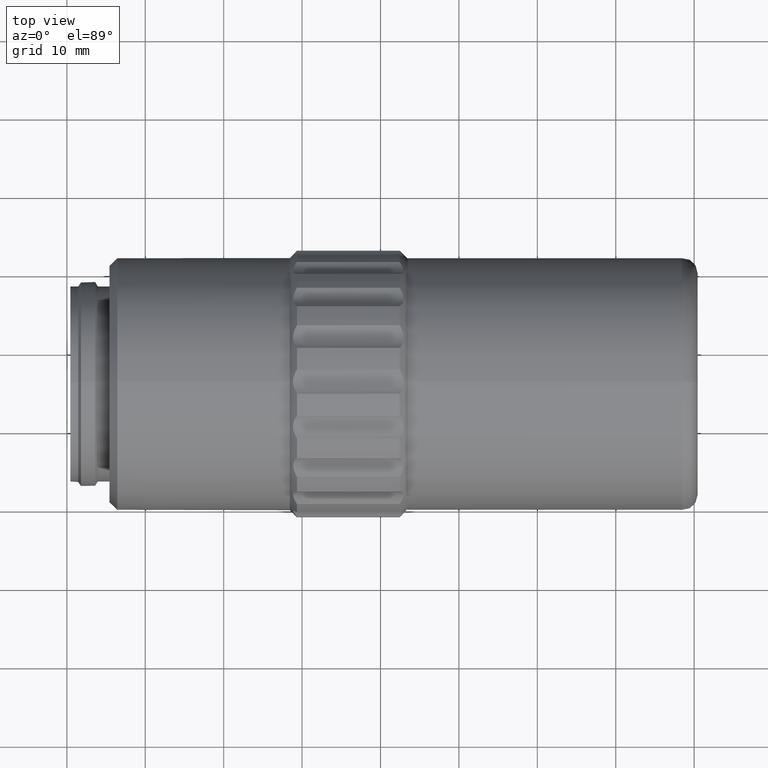
[diagram: clean part render]
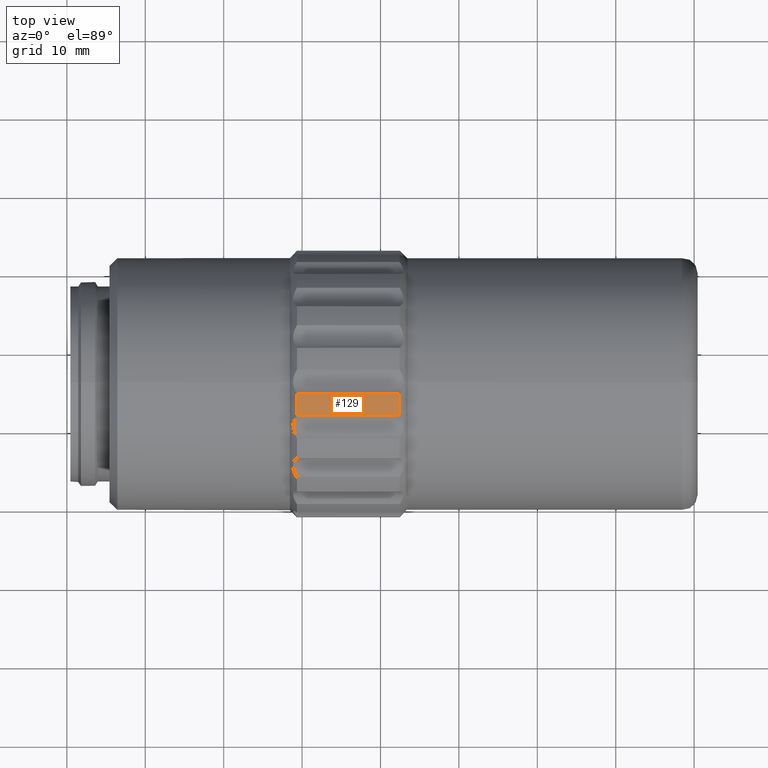
[diagram: same view with one face highlighted and labeled with its STEP entity id]
A machine part, top view. The second image highlights one B-rep face of the part: STEP entity #129.
In plain terms, the highlighted cylindrical surface (partial cylindrical patch) has radius 17 mm, axis along (-1, 0, 0).
Its self-contained STEP definition (entity closure, byte-faithful):
#15 = ORIENTED_EDGE ( 'NONE', *, *, #1277, .F. ) ;
#23 = CARTESIAN_POINT ( 'NONE',  ( 19.34685803487881728, 41.68421451916362486, 16.43753695927285108 ) ) ;
#129 = ADVANCED_FACE ( 'NONE', ( #1557 ), #583, .T. ) ;
#226 = DIRECTION ( 'NONE',  ( 1.000000000000000000, -0.000000000000000000, -0.000000000000000000 ) ) ;
#324 = ORIENTED_EDGE ( 'NONE', *, *, #1973, .T. ) ;
#340 = VERTEX_POINT ( 'NONE', #1516 ) ;
#367 = DIRECTION ( 'NONE',  ( 1.000000000000000000, -0.000000000000000000, -0.000000000000000000 ) ) ;
#395 = LINE ( 'NONE', #1379, #1530 ) ;
#411 = CARTESIAN_POINT ( 'NONE',  ( 32.44685803487876541, 41.68421451916363196, 16.43753695927285818 ) ) ;
#514 = VERTEX_POINT ( 'NONE', #23 ) ;
#526 = CIRCLE ( 'NONE', #1539, 17.00000000000000000 ) ;
#529 = DIRECTION ( 'NONE',  ( 0.000000000000000000, 1.000000000000000000, 1.776356839400250465E-15 ) ) ;
#551 = DIRECTION ( 'NONE',  ( 1.000000000000000000, -0.000000000000000000, -0.000000000000000000 ) ) ;
#583 = CYLINDRICAL_SURFACE ( 'NONE', #1835, 17.00000000000000000 ) ;
#838 = CARTESIAN_POINT ( 'NONE',  ( 32.44685803487879383, 44.47420285922232353, 16.92948717948717530 ) ) ;
#895 = AXIS2_PLACEMENT_3D ( 'NONE', #1491, #226, #529 ) ;
#917 = CARTESIAN_POINT ( 'NONE',  ( 25.94685803487879738, 46.02096199999999726, 0.000000000000000000 ) ) ;
#925 = DIRECTION ( 'NONE',  ( 0.000000000000000000, 0.000000000000000000, 1.000000000000000000 ) ) ;
#960 = EDGE_CURVE ( 'NONE', #340, #514, #526, .T. ) ;
#1013 = CARTESIAN_POINT ( 'NONE',  ( 53.58686043487880823, 41.68421451916363196, 16.43753695927285818 ) ) ;
#1082 = CIRCLE ( 'NONE', #895, 17.00000000000000000 ) ;
#1141 = EDGE_LOOP ( 'NONE', ( #324, #15, #1697, #1767 ) ) ;
#1253 = VERTEX_POINT ( 'NONE', #838 ) ;
#1261 = DIRECTION ( 'NONE',  ( -1.000000000000000000, 0.000000000000000000, 0.000000000000000000 ) ) ;
#1277 = EDGE_CURVE ( 'NONE', #1253, #1488, #1082, .T. ) ;
#1367 = EDGE_CURVE ( 'NONE', #1253, #340, #395, .T. ) ;
#1379 = CARTESIAN_POINT ( 'NONE',  ( 25.94685803487879738, 44.47420285922229510, 16.92948717948717530 ) ) ;
#1488 = VERTEX_POINT ( 'NONE', #411 ) ;
#1491 = CARTESIAN_POINT ( 'NONE',  ( 32.44685803487878673, 46.02096199999999726, 0.000000000000000000 ) ) ;
#1493 = LINE ( 'NONE', #1013, #1583 ) ;
#1516 = CARTESIAN_POINT ( 'NONE',  ( 19.34685803487880307, 44.47420285922230931, 16.92948717948718595 ) ) ;
#1530 = VECTOR ( 'NONE', #1872, 1000.000000000000000 ) ;
#1539 = AXIS2_PLACEMENT_3D ( 'NONE', #1976, #551, #1656 ) ;
#1557 = FACE_OUTER_BOUND ( 'NONE', #1141, .T. ) ;
#1583 = VECTOR ( 'NONE', #367, 1000.000000000000000 ) ;
#1656 = DIRECTION ( 'NONE',  ( 0.000000000000000000, 8.163404592832032979E-16, 1.000000000000000000 ) ) ;
#1697 = ORIENTED_EDGE ( 'NONE', *, *, #1367, .T. ) ;
#1767 = ORIENTED_EDGE ( 'NONE', *, *, #960, .T. ) ;
#1835 = AXIS2_PLACEMENT_3D ( 'NONE', #917, #1261, #925 ) ;
#1872 = DIRECTION ( 'NONE',  ( -1.000000000000000000, 0.000000000000000000, 0.000000000000000000 ) ) ;
#1973 = EDGE_CURVE ( 'NONE', #514, #1488, #1493, .T. ) ;
#1976 = CARTESIAN_POINT ( 'NONE',  ( 19.34685803487879596, 46.02096199999999726, 0.000000000000000000 ) ) ;